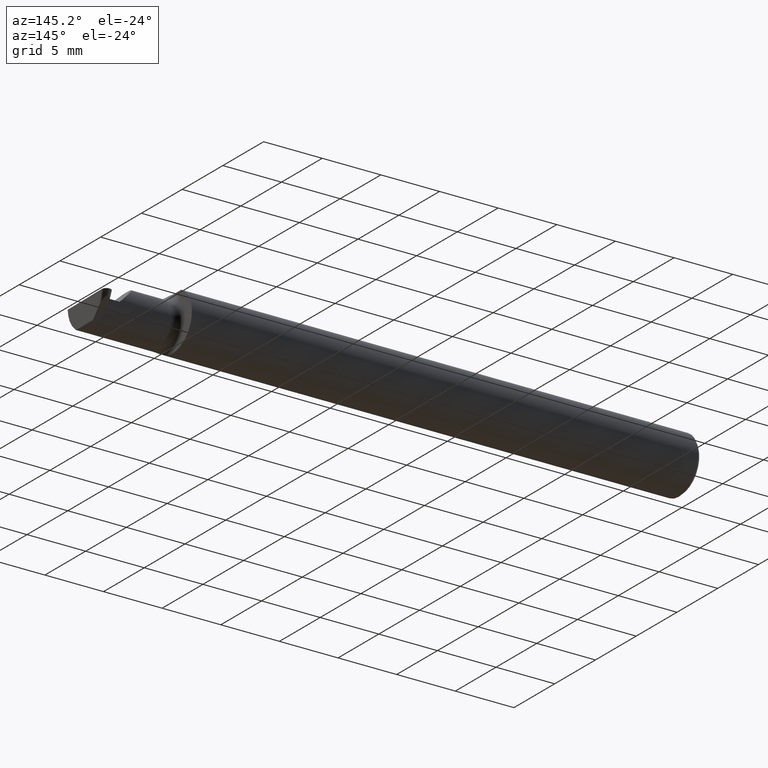
[diagram: clean part render]
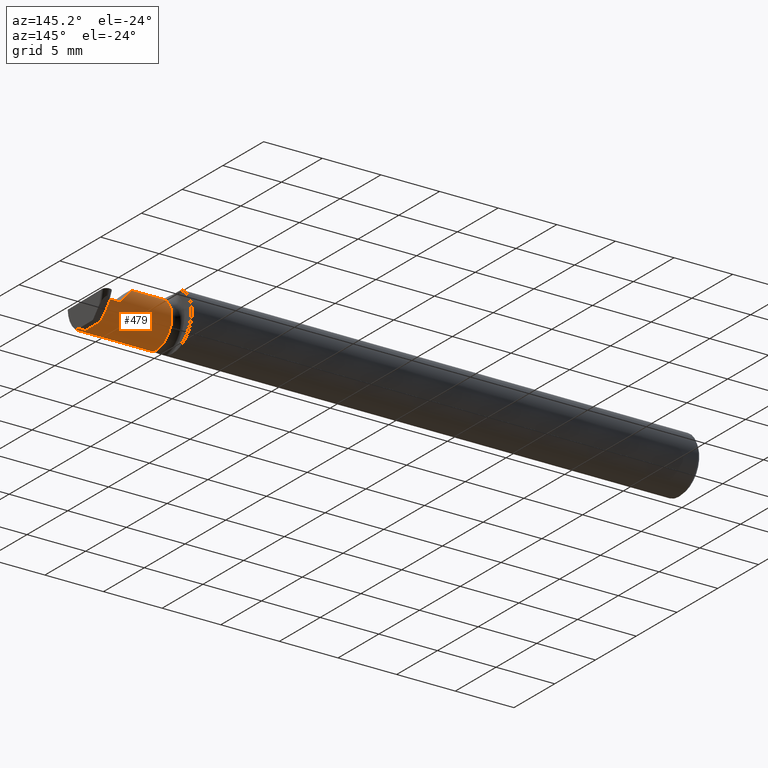
[diagram: same view with one face highlighted and labeled with its STEP entity id]
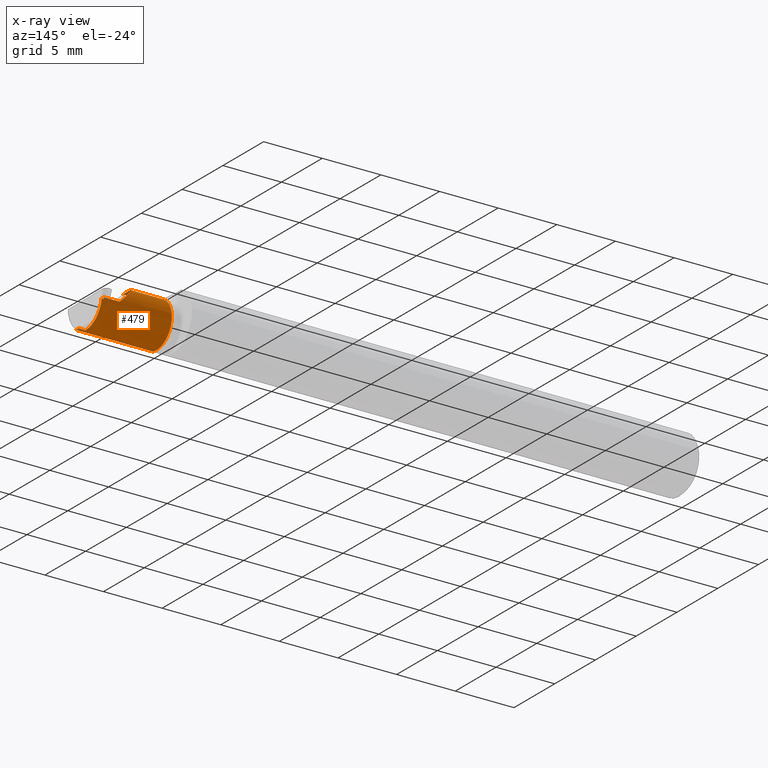
[diagram: x-ray of the same camera — body ghosted, the highlighted face saturated]
A machine part, auxiliary view. The second image highlights one B-rep face of the part: STEP entity #479.
The next image is the same camera in x-ray: the body ghosted, the highlighted face saturated — about 0% of this face is hidden behind the body in this view.
In plain terms, the highlighted cylindrical surface (edge-blend (fillet) strip) has radius 1.905 mm, axis along (-1, -0, -0).
Its self-contained STEP definition (entity closure, byte-faithful):
#7 = CARTESIAN_POINT ( 'NONE',  ( 1.910000000000000142, 0.03240000000000001906, 3.551475717527338624E-17 ) ) ;
#24 = EDGE_CURVE ( 'NONE', #484, #691, #347, .T. ) ;
#26 = EDGE_CURVE ( 'NONE', #207, #250, #613, .T. ) ;
#27 = B_SPLINE_CURVE_WITH_KNOTS ( 'NONE', 3,
 ( #414, #296, #522, #35 ),
 .UNSPECIFIED., .F., .F.,
 ( 4, 4 ),
 ( 0.000000000000000000, 1.000000000000000000 ),
 .UNSPECIFIED. ) ;
#29 = DIRECTION ( 'NONE',  ( 0.000000000000000000, -1.000000000000000000, 0.000000000000000000 ) ) ;
#33 = VECTOR ( 'NONE', #679, 39.37007874015748143 ) ;
#35 = CARTESIAN_POINT ( 'NONE',  ( 1.964199165186739648, 0.03239999999999999825, 0.000000000000000000 ) ) ;
#36 = CARTESIAN_POINT ( 'NONE',  ( 1.709999999999999964, 0.03239999999999998437, 3.551475717527338624E-17 ) ) ;
#37 = CARTESIAN_POINT ( 'NONE',  ( 1.709999999999999964, 0.03221730376948644947, -0.005231735530814581037 ) ) ;
#56 = CARTESIAN_POINT ( 'NONE',  ( 1.734999999999999876, -0.04260000000000008225, 0.000000000000000000 ) ) ;
#64 = CARTESIAN_POINT ( 'NONE',  ( 1.995327814509989528, -0.04259999999999948550, -0.07500000000000002498 ) ) ;
#77 = VERTEX_POINT ( 'NONE', #564 ) ;
#84 = CARTESIAN_POINT ( 'NONE',  ( 1.970397471987413995, 0.03221730376948542252, -0.005231735530809524318 ) ) ;
#94 = EDGE_CURVE ( 'NONE', #691, #210, #27, .T. ) ;
#100 = CARTESIAN_POINT ( 'NONE',  ( 1.995165152206654691, -0.05300374992736034407, -0.07445783144524581454 ) ) ;
#102 = EDGE_CURVE ( 'NONE', #345, #570, #624, .T. ) ;
#118 = CARTESIAN_POINT ( 'NONE',  ( 1.858433946715231766, 0.03240000000000000518, 0.05156605328476855654 ) ) ;
#142 =( BOUNDED_CURVE ( )  B_SPLINE_CURVE ( 3, ( #155, #100, #534, #486 ),
 .UNSPECIFIED., .F., .T. ) 
 B_SPLINE_CURVE_WITH_KNOTS ( ( 4, 4 ),
 ( 0.2552020043920822379, 0.4634648172053437154 ),
 .UNSPECIFIED. ) 
 CURVE ( )  GEOMETRIC_REPRESENTATION_ITEM ( )  RATIONAL_B_SPLINE_CURVE ( ( 1.000000000000000000, 0.9963888149483992596, 0.9963888149483992596, 1.000000000000000000 ) ) 
 REPRESENTATION_ITEM ( '' )  );
#146 = DIRECTION ( 'NONE',  ( 1.000000000000000000, 1.645101957906638708E-16, 0.000000000000000000 ) ) ;
#148 = VECTOR ( 'NONE', #674, 39.37007874015748143 ) ;
#155 = CARTESIAN_POINT ( 'NONE',  ( 1.995113740419715231, -0.05810704225352097962, -0.07337936794867837287 ) ) ;
#156 = ORIENTED_EDGE ( 'NONE', *, *, #516, .F. ) ;
#158 = DIRECTION ( 'NONE',  ( -1.000000000000000000, -1.645101957906638708E-16, -0.000000000000000000 ) ) ;
#165 = EDGE_LOOP ( 'NONE', ( #430, #361, #453, #474, #365, #525, #260, #156, #477, #577 ) ) ;
#196 = DIRECTION ( 'NONE',  ( -1.000000000000000000, -1.645101957906638708E-16, -0.000000000000000000 ) ) ;
#204 = EDGE_CURVE ( 'NONE', #207, #345, #142, .T. ) ;
#205 = CYLINDRICAL_SURFACE ( 'NONE', #465, 0.07500000000000006661 ) ;
#207 = VERTEX_POINT ( 'NONE', #313 ) ;
#210 = VERTEX_POINT ( 'NONE', #692 ) ;
#217 = EDGE_CURVE ( 'NONE', #77, #288, #669, .T. ) ;
#219 = CARTESIAN_POINT ( 'NONE',  ( 1.836620632051321200, -0.05810704225352119473, 0.07337936794867828960 ) ) ;
#250 = VERTEX_POINT ( 'NONE', #504 ) ;
#260 = ORIENTED_EDGE ( 'NONE', *, *, #24, .F. ) ;
#273 = VECTOR ( 'NONE', #146, 39.37007874015748143 ) ;
#277 = CARTESIAN_POINT ( 'NONE',  ( 1.972966441847108232, -0.04260000000000003367, -0.07500000000000003886 ) ) ;
#288 = VERTEX_POINT ( 'NONE', #597 ) ;
#291 = CARTESIAN_POINT ( 'NONE',  ( 2.115884466375952844, -0.04259999999999948550, -0.07500000000000002498 ) ) ;
#296 = CARTESIAN_POINT ( 'NONE',  ( 1.964077367699730736, 0.03227820251299117621, -0.003487823687207102126 ) ) ;
#308 = VECTOR ( 'NONE', #472, 39.37007874015748143 ) ;
#313 = CARTESIAN_POINT ( 'NONE',  ( 1.995113740419715231, -0.05810704225352097962, -0.07337936794867837287 ) ) ;
#345 = VERTEX_POINT ( 'NONE', #64 ) ;
#347 = LINE ( 'NONE', #37, #308 ) ;
#359 = CARTESIAN_POINT ( 'NONE',  ( 1.972966441847108232, -0.04260000000000003367, -0.07500000000000003886 ) ) ;
#361 = ORIENTED_EDGE ( 'NONE', *, *, #546, .F. ) ;
#365 = ORIENTED_EDGE ( 'NONE', *, *, #418, .T. ) ;
#370 = DIRECTION ( 'NONE',  ( 0.000000000000000000, -1.000000000000000000, 0.000000000000000000 ) ) ;
#387 = CARTESIAN_POINT ( 'NONE',  ( 1.734999999999999876, -0.05810704225352093799, 0.07337936794867844226 ) ) ;
#409 = LINE ( 'NONE', #36, #273 ) ;
#414 = CARTESIAN_POINT ( 'NONE',  ( 1.964016468956226280, 0.03221730376948676866, -0.005231735530810645816 ) ) ;
#416 = CARTESIAN_POINT ( 'NONE',  ( 1.972914956890062355, -0.001060451341131608870, -0.07500000000000006661 ) ) ;
#418 = EDGE_CURVE ( 'NONE', #288, #210, #409, .T. ) ;
#421 = EDGE_CURVE ( 'NONE', #686, #77, #612, .T. ) ;
#430 = ORIENTED_EDGE ( 'NONE', *, *, #26, .T. ) ;
#437 = AXIS2_PLACEMENT_3D ( 'NONE', #56, #158, #370 ) ;
#453 = ORIENTED_EDGE ( 'NONE', *, *, #421, .T. ) ;
#465 = AXIS2_PLACEMENT_3D ( 'NONE', #514, #196, #29 ) ;
#466 = CARTESIAN_POINT ( 'NONE',  ( 1.852233979999999836, -0.05810704225352100738, 0.07337936794867837287 ) ) ;
#471 = CARTESIAN_POINT ( 'NONE',  ( 1.970397471987413995, 0.03221730376948542252, -0.005231735530809524318 ) ) ;
#472 = DIRECTION ( 'NONE',  ( -1.000000000000000000, -1.645101957906638708E-16, -0.000000000000000000 ) ) ;
#474 = ORIENTED_EDGE ( 'NONE', *, *, #217, .T. ) ;
#477 = ORIENTED_EDGE ( 'NONE', *, *, #102, .F. ) ;
#479 = ADVANCED_FACE ( 'NONE', ( #688 ), #205, .T. ) ;
#484 = VERTEX_POINT ( 'NONE', #84 ) ;
#486 = CARTESIAN_POINT ( 'NONE',  ( 1.995327814509989528, -0.04259999999999948550, -0.07500000000000002498 ) ) ;
#491 = CARTESIAN_POINT ( 'NONE',  ( 1.825958805822864628, -0.007655250284932180876, 0.08404119417713473705 ) ) ;
#504 = CARTESIAN_POINT ( 'NONE',  ( 1.734999999999999876, -0.05810704225352095881, -0.07337936794867842838 ) ) ;
#514 = CARTESIAN_POINT ( 'NONE',  ( 1.709999999999999964, -0.04260000000000008225, 0.000000000000000000 ) ) ;
#516 = EDGE_CURVE ( 'NONE', #570, #484, #696, .T. ) ;
#517 = DIRECTION ( 'NONE',  ( -1.000000000000000000, -0.000000000000000000, -0.000000000000000000 ) ) ;
#522 = CARTESIAN_POINT ( 'NONE',  ( 1.964138266443234970, 0.03233910125649558376, -0.001743911843603550846 ) ) ;
#525 = ORIENTED_EDGE ( 'NONE', *, *, #94, .F. ) ;
#532 = VECTOR ( 'NONE', #517, 39.37007874015748143 ) ;
#533 = CIRCLE ( 'NONE', #437, 0.07500000000000010825 ) ;
#534 = CARTESIAN_POINT ( 'NONE',  ( 1.995236768857725718, -0.04781600192481491596, -0.07500000000000009437 ) ) ;
#546 = EDGE_CURVE ( 'NONE', #686, #250, #533, .T. ) ;
#564 = CARTESIAN_POINT ( 'NONE',  ( 1.836620632051321200, -0.05810704225352119473, 0.07337936794867828960 ) ) ;
#568 = CARTESIAN_POINT ( 'NONE',  ( 1.971871808257659398, 0.02931965133412154506, -0.04667009593691549829 ) ) ;
#570 = VERTEX_POINT ( 'NONE', #277 ) ;
#577 = ORIENTED_EDGE ( 'NONE', *, *, #204, .F. ) ;
#597 = CARTESIAN_POINT ( 'NONE',  ( 1.910000000000000142, 0.03240000000000001906, 3.551475717527338624E-17 ) ) ;
#612 = LINE ( 'NONE', #466, #33 ) ;
#613 = LINE ( 'NONE', #619, #148 ) ;
#619 = CARTESIAN_POINT ( 'NONE',  ( 1.852233979999999836, -0.05810704225352100738, -0.07337936794867837287 ) ) ;
#624 = LINE ( 'NONE', #291, #532 ) ;
#654 = CARTESIAN_POINT ( 'NONE',  ( 1.964016468956226280, 0.03221730376948676866, -0.005231735530810645816 ) ) ;
#669 =( BOUNDED_CURVE ( )  B_SPLINE_CURVE ( 3, ( #219, #491, #118, #7 ),
 .UNSPECIFIED., .F., .T. ) 
 B_SPLINE_CURVE_WITH_KNOTS ( ( 4, 4 ),
 ( 6.074922494366329140, 7.853981633974482790 ),
 .UNSPECIFIED. ) 
 CURVE ( )  GEOMETRIC_REPRESENTATION_ITEM ( )  RATIONAL_B_SPLINE_CURVE ( ( 1.000000000000000000, 0.7531850099525143616, 0.7531850099525143616, 1.000000000000000000 ) ) 
 REPRESENTATION_ITEM ( '' )  );
#674 = DIRECTION ( 'NONE',  ( -1.000000000000000000, -1.645101957906638708E-16, -0.000000000000000000 ) ) ;
#679 = DIRECTION ( 'NONE',  ( 1.000000000000000000, 1.645101957906638708E-16, 0.000000000000000000 ) ) ;
#686 = VERTEX_POINT ( 'NONE', #387 ) ;
#688 = FACE_OUTER_BOUND ( 'NONE', #165, .T. ) ;
#691 = VERTEX_POINT ( 'NONE', #654 ) ;
#692 = CARTESIAN_POINT ( 'NONE',  ( 1.964199165186739648, 0.03239999999999999825, 0.000000000000000000 ) ) ;
#696 =( BOUNDED_CURVE ( )  B_SPLINE_CURVE ( 3, ( #359, #416, #568, #471 ),
 .UNSPECIFIED., .F., .T. ) 
 B_SPLINE_CURVE_WITH_KNOTS ( ( 4, 4 ),
 ( 3.176499238629674871, 4.677482395344795485 ),
 .UNSPECIFIED. ) 
 CURVE ( )  GEOMETRIC_REPRESENTATION_ITEM ( )  RATIONAL_B_SPLINE_CURVE ( ( 1.000000000000000000, 0.8209024677461143060, 0.8209024677461143060, 1.000000000000000000 ) ) 
 REPRESENTATION_ITEM ( '' )  );